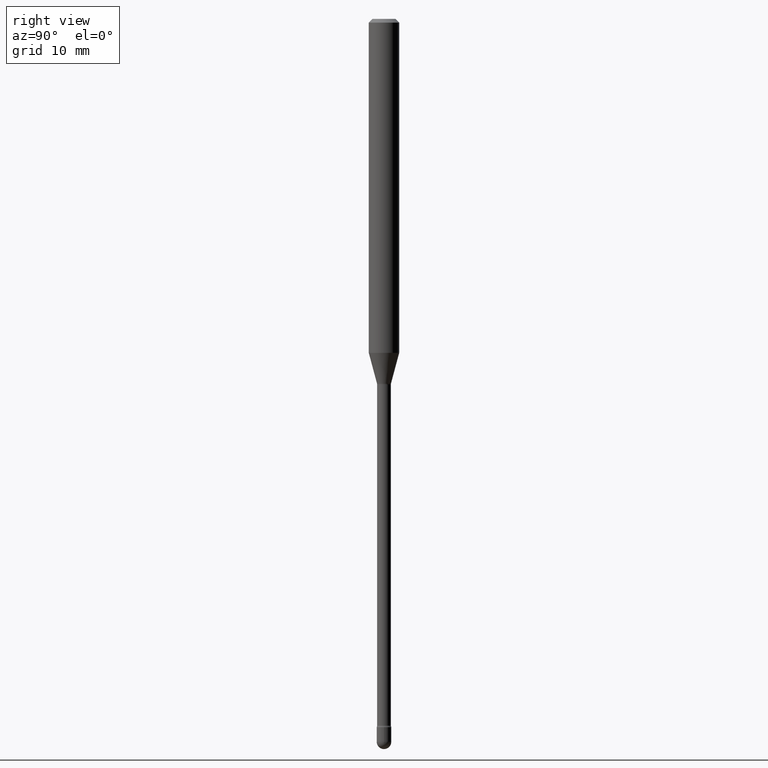
[diagram: clean part render]
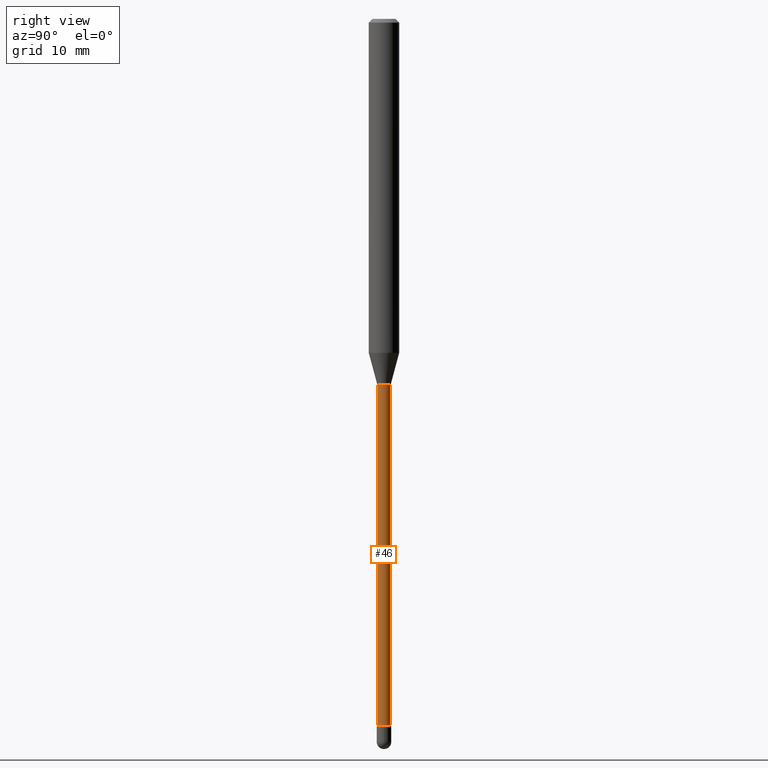
[diagram: same view with one face highlighted and labeled with its STEP entity id]
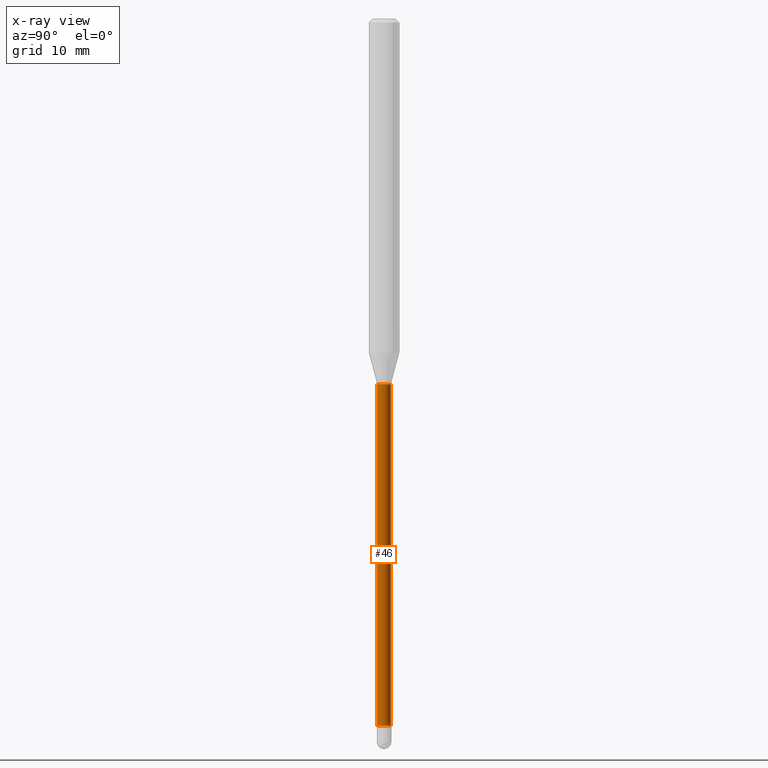
[diagram: x-ray of the same camera — body ghosted, the highlighted face saturated]
A machine part, right view. The second image highlights one B-rep face of the part: STEP entity #46.
The next image is the same camera in x-ray: the body ghosted, the highlighted face saturated — about 0% of this face is hidden behind the body in this view.
In plain terms, the highlighted cylindrical surface (edge-blend (fillet) strip) has radius 0.7163 mm, axis along (-0, 0, 1).
Its self-contained STEP definition (entity closure, byte-faithful):
#16 = VERTEX_POINT ( 'NONE', #146 ) ;
#26 = LINE ( 'NONE', #475, #496 ) ;
#46 = ADVANCED_FACE ( 'NONE', ( #564 ), #231, .T. ) ;
#52 = ORIENTED_EDGE ( 'NONE', *, *, #257, .F. ) ;
#61 = ORIENTED_EDGE ( 'NONE', *, *, #294, .T. ) ;
#108 = VERTEX_POINT ( 'NONE', #311 ) ;
#114 = CARTESIAN_POINT ( 'NONE',  ( 7.098908413975562877E-29, -1.013531065572993230E-14, -2.902875394747778337 ) ) ;
#115 = CARTESIAN_POINT ( 'NONE',  ( -1.969195475107158970E-16, -0.02820000000000523824, -1.501974787463811190 ) ) ;
#122 = DIRECTION ( 'NONE',  ( -6.982962677686265133E-15, -1.000000000000000000, 0.000000000000000000 ) ) ;
#136 = ORIENTED_EDGE ( 'NONE', *, *, #228, .F. ) ;
#145 = AXIS2_PLACEMENT_3D ( 'NONE', #167, #424, #122 ) ;
#146 = CARTESIAN_POINT ( 'NONE',  ( -1.969195475106832086E-16, -0.02820000000001035220, -2.902875394747778337 ) ) ;
#167 = CARTESIAN_POINT ( 'NONE',  ( 3.673041383587334427E-29, -5.244104206320004294E-15, -1.501974787463811190 ) ) ;
#169 = CARTESIAN_POINT ( 'NONE',  ( -1.169113584055446105E-44, 1.669184350826100908E-30, 4.780733988912460139E-16 ) ) ;
#206 = EDGE_LOOP ( 'NONE', ( #252, #61, #136, #52 ) ) ;
#211 = CARTESIAN_POINT ( 'NONE',  ( 2.003730514843489875E-16, 0.02820000000000010693, 3.796138642488992175E-16 ) ) ;
#228 = EDGE_CURVE ( 'NONE', #295, #108, #417, .T. ) ;
#231 = CYLINDRICAL_SURFACE ( 'NONE', #565, 0.02820000000000010693 ) ;
#247 = CIRCLE ( 'NONE', #357, 0.02820000000000021795 ) ;
#252 = ORIENTED_EDGE ( 'NONE', *, *, #563, .T. ) ;
#257 = EDGE_CURVE ( 'NONE', #16, #295, #26, .T. ) ;
#261 = DIRECTION ( 'NONE',  ( -2.445474727168702931E-29, 3.491472859657677154E-15, 1.000000000000000000 ) ) ;
#294 = EDGE_CURVE ( 'NONE', #344, #108, #508, .T. ) ;
#295 = VERTEX_POINT ( 'NONE', #115 ) ;
#300 = DIRECTION ( 'NONE',  ( -6.982962677686265133E-15, -1.000000000000000000, 0.000000000000000000 ) ) ;
#311 = CARTESIAN_POINT ( 'NONE',  ( 2.003730514844198124E-16, 0.02819999999999474663, -1.501974787463811190 ) ) ;
#344 = VERTEX_POINT ( 'NONE', #399 ) ;
#346 = DIRECTION ( 'NONE',  ( -2.445474727168702931E-29, 3.491472859657677154E-15, 1.000000000000000000 ) ) ;
#357 = AXIS2_PLACEMENT_3D ( 'NONE', #114, #261, #300 ) ;
#362 = DIRECTION ( 'NONE',  ( -6.982962677686266711E-15, -1.000000000000000000, 3.491472859657679126E-15 ) ) ;
#392 = VECTOR ( 'NONE', #559, 39.37007874015748143 ) ;
#399 = CARTESIAN_POINT ( 'NONE',  ( 2.067679361062608233E-16, 0.02819999999999008716, -2.902875394747778337 ) ) ;
#417 = CIRCLE ( 'NONE', #145, 0.02819999999999999243 ) ;
#424 = DIRECTION ( 'NONE',  ( -2.445474727168702931E-29, 3.491472859657677154E-15, 1.000000000000000000 ) ) ;
#475 = CARTESIAN_POINT ( 'NONE',  ( -1.969195475107534665E-16, -0.02820000000000010693, 5.765329335335929582E-16 ) ) ;
#496 = VECTOR ( 'NONE', #346, 39.37007874015748143 ) ;
#508 = LINE ( 'NONE', #211, #392 ) ;
#523 = DIRECTION ( 'NONE',  ( -2.445474727168702931E-29, 3.491472859657677154E-15, 1.000000000000000000 ) ) ;
#559 = DIRECTION ( 'NONE',  ( -2.445474727168702931E-29, 3.491472859657677154E-15, 1.000000000000000000 ) ) ;
#563 = EDGE_CURVE ( 'NONE', #16, #344, #247, .T. ) ;
#564 = FACE_OUTER_BOUND ( 'NONE', #206, .T. ) ;
#565 = AXIS2_PLACEMENT_3D ( 'NONE', #169, #523, #362 ) ;